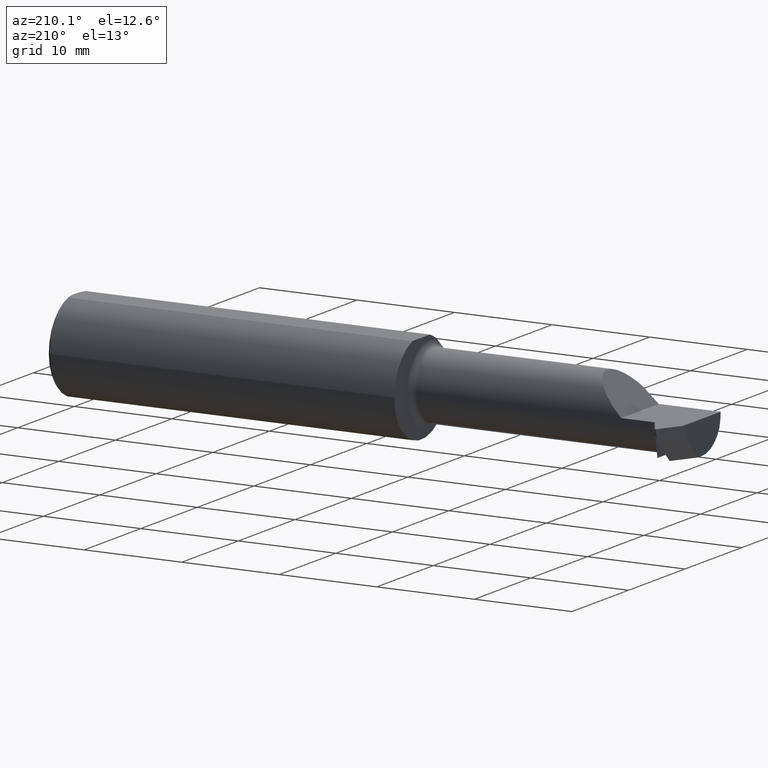
[diagram: clean part render]
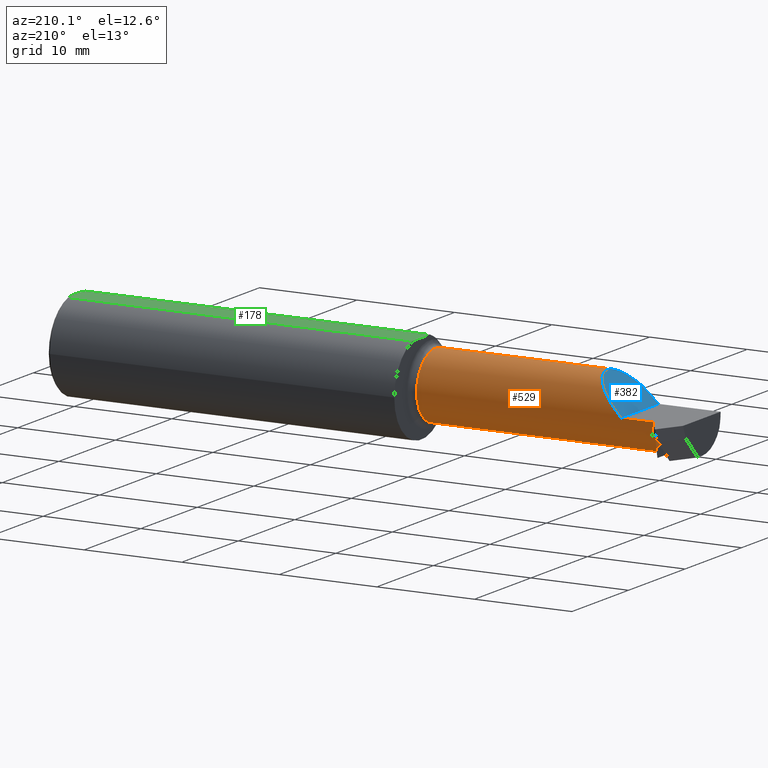
[diagram: same view with three faces highlighted in distinct colors, each labeled with its STEP entity id]
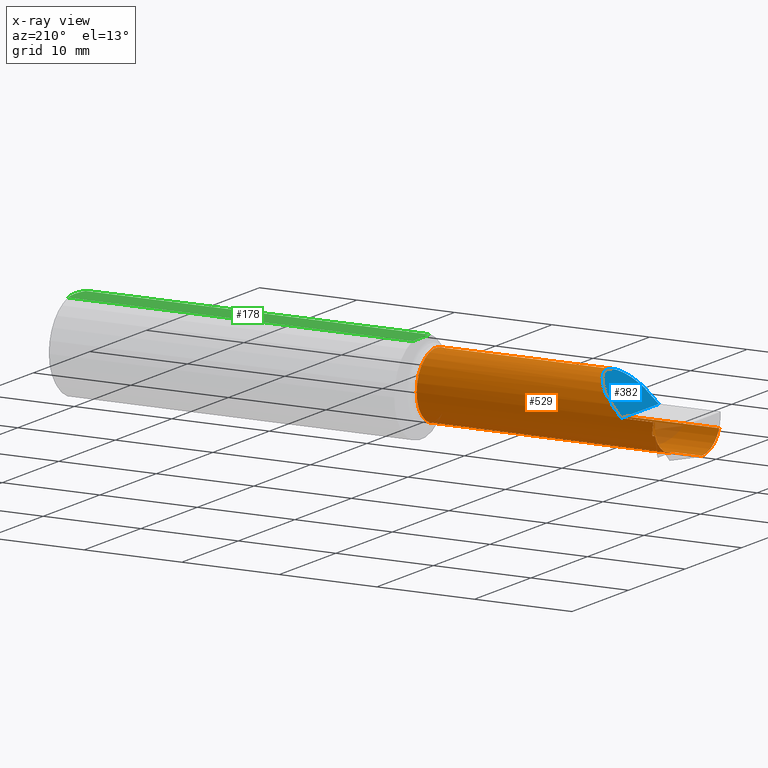
[diagram: x-ray of the same camera — body ghosted, the three highlighted faces saturated]
A machine part, auxiliary view with three faces highlighted in distinct colors.
The next image is the same camera in x-ray (body ghosted, the three faces saturated) — at least one of them is partly hidden behind the body in this view.
Their STEP definitions:

[orange] entity #529 — the highlighted cylindrical surface (partial cylindrical patch) has radius 3.3782 mm, axis along (-1, 0, -0).
#9 = AXIS2_PLACEMENT_3D ( 'NONE', #206, #792, #816 ) ;
#27 =( BOUNDED_CURVE ( )  B_SPLINE_CURVE ( 3, ( #171, #126, #443, #251 ),
 .UNSPECIFIED., .F., .F. ) 
 B_SPLINE_CURVE_WITH_KNOTS ( ( 4, 4 ),
 ( 1.570796326794896780, 1.972222054753628662 ),
 .UNSPECIFIED. ) 
 CURVE ( )  GEOMETRIC_REPRESENTATION_ITEM ( )  RATIONAL_B_SPLINE_CURVE ( ( 1.000000000000000000, 0.9866164697472173950, 0.9866164697472173950, 1.000000000000000000 ) ) 
 REPRESENTATION_ITEM ( '' )  );
#28 = CIRCLE ( 'NONE', #667, 0.1330000000000000349 ) ;
#45 = DIRECTION ( 'NONE',  ( -1.000000000000000000, -1.553500558300393421E-17, -0.000000000000000000 ) ) ;
#51 = DIRECTION ( 'NONE',  ( 0.000000000000000000, -1.000000000000000000, 0.000000000000000000 ) ) ;
#63 = EDGE_CURVE ( 'NONE', #210, #624, #151, .T. ) ;
#66 = EDGE_LOOP ( 'NONE', ( #833, #847, #753, #213, #681, #182, #587, #492, #320, #252 ) ) ;
#117 = EDGE_CURVE ( 'NONE', #210, #507, #27, .T. ) ;
#119 = CYLINDRICAL_SURFACE ( 'NONE', #691, 0.1330000000000002292 ) ;
#123 = CARTESIAN_POINT ( 'NONE',  ( -2.192691453216395914, -0.1783697086546688626, 0.05730854678360348953 ) ) ;
#126 = CARTESIAN_POINT ( 'NONE',  ( -2.377429102214748902, 0.07465000000000020230, -0.01791708402103020514 ) ) ;
#128 = DIRECTION ( 'NONE',  ( 1.000000000000000000, -9.108622265535208572E-17, 0.000000000000000000 ) ) ;
#145 = CARTESIAN_POINT ( 'NONE',  ( -2.500000000000000000, -0.05835000000000015175, -0.1330000000000000349 ) ) ;
#151 = LINE ( 'NONE', #294, #273 ) ;
#163 = DIRECTION ( 'NONE',  ( 1.000000000000000000, -9.108622265535208572E-17, 0.000000000000000000 ) ) ;
#171 = CARTESIAN_POINT ( 'NONE',  ( -2.381074374157795326, 0.07464999999999998026, 0.000000000000000000 ) ) ;
#182 = ORIENTED_EDGE ( 'NONE', *, *, #629, .F. ) ;
#206 = CARTESIAN_POINT ( 'NONE',  ( -2.500000000000000000, -0.05835000000000006154, 0.000000000000000000 ) ) ;
#210 = VERTEX_POINT ( 'NONE', #461 ) ;
#213 = ORIENTED_EDGE ( 'NONE', *, *, #329, .F. ) ;
#220 = VECTOR ( 'NONE', #351, 39.37007874015748143 ) ;
#229 = VERTEX_POINT ( 'NONE', #602 ) ;
#236 = CARTESIAN_POINT ( 'NONE',  ( -2.381074374157795326, -0.05835000000000015175, -0.1330000000000000349 ) ) ;
#251 = CARTESIAN_POINT ( 'NONE',  ( -2.370501519666968981, 0.06407714550917323337, -0.05196724008907808307 ) ) ;
#252 = ORIENTED_EDGE ( 'NONE', *, *, #296, .F. ) ;
#269 = LINE ( 'NONE', #538, #761 ) ;
#273 = VECTOR ( 'NONE', #163, 39.37007874015748143 ) ;
#278 = CARTESIAN_POINT ( 'NONE',  ( -2.381074374157795326, -0.05835000000000015175, -0.1330000000000000349 ) ) ;
#281 = VERTEX_POINT ( 'NONE', #475 ) ;
#294 = CARTESIAN_POINT ( 'NONE',  ( -2.500000000000000000, 0.07465000000000018843, 0.000000000000000000 ) ) ;
#296 = EDGE_CURVE ( 'NONE', #507, #229, #594, .T. ) ;
#304 = DIRECTION ( 'NONE',  ( 0.000000000000000000, -1.000000000000000000, 0.000000000000000000 ) ) ;
#309 = VERTEX_POINT ( 'NONE', #145 ) ;
#320 = ORIENTED_EDGE ( 'NONE', *, *, #742, .F. ) ;
#329 = EDGE_CURVE ( 'NONE', #281, #638, #419, .T. ) ;
#334 = DIRECTION ( 'NONE',  ( 0.000000000000000000, -1.000000000000000000, 0.000000000000000000 ) ) ;
#351 = DIRECTION ( 'NONE',  ( -1.000000000000000000, 9.108622265535208572E-17, -0.000000000000000000 ) ) ;
#359 = VERTEX_POINT ( 'NONE', #831 ) ;
#367 = VERTEX_POINT ( 'NONE', #278 ) ;
#375 = CARTESIAN_POINT ( 'NONE',  ( -2.381074374157795326, -0.05835000000000004766, 0.000000000000000000 ) ) ;
#379 = VECTOR ( 'NONE', #734, 39.37007874015748143 ) ;
#385 = FACE_OUTER_BOUND ( 'NONE', #66, .T. ) ;
#394 = CIRCLE ( 'NONE', #9, 0.1330000000000000071 ) ;
#396 = CARTESIAN_POINT ( 'NONE',  ( -2.030319072763994814, -0.1008380660117469685, 0.2196809272360030763 ) ) ;
#410 = EDGE_CURVE ( 'NONE', #367, #309, #632, .T. ) ;
#419 = LINE ( 'NONE', #675, #220 ) ;
#433 = AXIS2_PLACEMENT_3D ( 'NONE', #809, #655, #334 ) ;
#443 = CARTESIAN_POINT ( 'NONE',  ( -2.373857010182697014, 0.07107790796794771770, -0.03547447728800473543 ) ) ;
#451 = DIRECTION ( 'NONE',  ( -1.000000000000000000, 9.108622265535208572E-17, -0.000000000000000000 ) ) ;
#460 = CARTESIAN_POINT ( 'NONE',  ( -2.250000000000000000, 0.07465000000000018843, 0.000000000000000000 ) ) ;
#461 = CARTESIAN_POINT ( 'NONE',  ( -2.381074374157795326, 0.07464999999999998026, 0.000000000000000000 ) ) ;
#475 = CARTESIAN_POINT ( 'NONE',  ( -1.424999999999999600, -0.1783697086546689181, 0.05730854678360410015 ) ) ;
#492 = ORIENTED_EDGE ( 'NONE', *, *, #410, .F. ) ;
#507 = VERTEX_POINT ( 'NONE', #766 ) ;
#529 = ADVANCED_FACE ( 'NONE', ( #385 ), #119, .T. ) ;
#538 = CARTESIAN_POINT ( 'NONE',  ( -1.903037187078897574, -0.1783697086546686961, -0.05730854678360398913 ) ) ;
#558 = EDGE_CURVE ( 'NONE', #624, #638, #741, .T. ) ;
#587 = ORIENTED_EDGE ( 'NONE', *, *, #872, .T. ) ;
#592 = CARTESIAN_POINT ( 'NONE',  ( -2.250000000000000000, 0.07465000000000018843, 0.000000000000000000 ) ) ;
#594 = LINE ( 'NONE', #869, #379 ) ;
#602 = CARTESIAN_POINT ( 'NONE',  ( -2.381074374157795326, 0.06407714550917456564, -0.05196724008907338543 ) ) ;
#623 = VECTOR ( 'NONE', #45, 39.37007874015748143 ) ;
#624 = VERTEX_POINT ( 'NONE', #592 ) ;
#629 = EDGE_CURVE ( 'NONE', #359, #825, #269, .T. ) ;
#632 = LINE ( 'NONE', #236, #623 ) ;
#638 = VERTEX_POINT ( 'NONE', #123 ) ;
#645 = DIRECTION ( 'NONE',  ( -1.000000000000000000, 9.108622265535208572E-17, -0.000000000000000000 ) ) ;
#655 = DIRECTION ( 'NONE',  ( -1.000000000000000000, 9.108622265535208572E-17, -0.000000000000000000 ) ) ;
#667 = AXIS2_PLACEMENT_3D ( 'NONE', #375, #451, #304 ) ;
#675 = CARTESIAN_POINT ( 'NONE',  ( -1.903037187078897574, -0.1783697086546686961, 0.05730854678360398913 ) ) ;
#681 = ORIENTED_EDGE ( 'NONE', *, *, #866, .T. ) ;
#689 = CIRCLE ( 'NONE', #433, 0.1330000000000004234 ) ;
#691 = AXIS2_PLACEMENT_3D ( 'NONE', #782, #645, #51 ) ;
#730 = CARTESIAN_POINT ( 'NONE',  ( -1.424999999999999600, -0.1783697086546688904, -0.05730854678360418342 ) ) ;
#732 = CARTESIAN_POINT ( 'NONE',  ( -2.070066830337791153, 0.07465000000000010516, 0.1799331696622070154 ) ) ;
#734 = DIRECTION ( 'NONE',  ( -1.000000000000000000, 9.108622265535208572E-17, -0.000000000000000000 ) ) ;
#741 =( BOUNDED_CURVE ( )  B_SPLINE_CURVE ( 3, ( #460, #732, #396, #801 ),
 .UNSPECIFIED., .F., .F. ) 
 B_SPLINE_CURVE_WITH_KNOTS ( ( 4, 4 ),
 ( 1.570796326794896558, 4.266908708460871225 ),
 .UNSPECIFIED. ) 
 CURVE ( )  GEOMETRIC_REPRESENTATION_ITEM ( )  RATIONAL_B_SPLINE_CURVE ( ( 1.000000000000000000, 0.4806019281062908211, 0.4806019281062908211, 1.000000000000000000 ) ) 
 REPRESENTATION_ITEM ( '' )  );
#742 = EDGE_CURVE ( 'NONE', #229, #367, #28, .T. ) ;
#753 = ORIENTED_EDGE ( 'NONE', *, *, #558, .T. ) ;
#761 = VECTOR ( 'NONE', #128, 39.37007874015748143 ) ;
#766 = CARTESIAN_POINT ( 'NONE',  ( -2.370501519666968981, 0.06407714550917323337, -0.05196724008907808307 ) ) ;
#782 = CARTESIAN_POINT ( 'NONE',  ( -2.500000000000000000, -0.05835000000000004072, 0.000000000000000000 ) ) ;
#792 = DIRECTION ( 'NONE',  ( 1.000000000000000000, 1.553500558300393113E-17, -0.000000000000000000 ) ) ;
#801 = CARTESIAN_POINT ( 'NONE',  ( -2.192691453216395914, -0.1783697086546688626, 0.05730854678360348953 ) ) ;
#809 = CARTESIAN_POINT ( 'NONE',  ( -1.424999999999999600, -0.05835000000000013787, 0.000000000000000000 ) ) ;
#816 = DIRECTION ( 'NONE',  ( 0.000000000000000000, -1.000000000000000000, 0.000000000000000000 ) ) ;
#825 = VERTEX_POINT ( 'NONE', #730 ) ;
#831 = CARTESIAN_POINT ( 'NONE',  ( -2.500000000000000000, -0.1783697086546693900, -0.05730854678360196297 ) ) ;
#833 = ORIENTED_EDGE ( 'NONE', *, *, #117, .F. ) ;
#847 = ORIENTED_EDGE ( 'NONE', *, *, #63, .T. ) ;
#866 = EDGE_CURVE ( 'NONE', #281, #825, #689, .T. ) ;
#869 = CARTESIAN_POINT ( 'NONE',  ( -2.500000000000001332, 0.06407714550917283092, -0.05196724008907797898 ) ) ;
#872 = EDGE_CURVE ( 'NONE', #359, #309, #394, .T. ) ;

[blue] entity #382 — the highlighted planar face has unit normal (0.7071, 0, -0.7071).
#32 = FACE_OUTER_BOUND ( 'NONE', #701, .T. ) ;
#64 = EDGE_CURVE ( 'NONE', #133, #624, #223, .T. ) ;
#121 = CARTESIAN_POINT ( 'NONE',  ( -2.250000000000000000, -0.1873499999999998222, 0.000000000000000000 ) ) ;
#123 = CARTESIAN_POINT ( 'NONE',  ( -2.192691453216395914, -0.1783697086546688626, 0.05730854678360348953 ) ) ;
#133 = VERTEX_POINT ( 'NONE', #121 ) ;
#153 = DIRECTION ( 'NONE',  ( -0.7071067811865514585, 0.000000000000000000, -0.7071067811865435759 ) ) ;
#223 = LINE ( 'NONE', #616, #760 ) ;
#230 = CARTESIAN_POINT ( 'NONE',  ( -2.192691453216395914, -0.1783697086546688626, 0.05730854678360348953 ) ) ;
#282 = PLANE ( 'NONE',  #738 ) ;
#332 = ORIENTED_EDGE ( 'NONE', *, *, #558, .F. ) ;
#382 = ADVANCED_FACE ( 'NONE', ( #32 ), #282, .F. ) ;
#389 = ORIENTED_EDGE ( 'NONE', *, *, #64, .F. ) ;
#396 = CARTESIAN_POINT ( 'NONE',  ( -2.030319072763994814, -0.1008380660117469685, 0.2196809272360030763 ) ) ;
#459 = ORIENTED_EDGE ( 'NONE', *, *, #534, .T. ) ;
#460 = CARTESIAN_POINT ( 'NONE',  ( -2.250000000000000000, 0.07465000000000018843, 0.000000000000000000 ) ) ;
#534 = EDGE_CURVE ( 'NONE', #133, #638, #650, .T. ) ;
#550 = DIRECTION ( 'NONE',  ( 0.7071067811865435759, 0.000000000000000000, -0.7071067811865514585 ) ) ;
#558 = EDGE_CURVE ( 'NONE', #624, #638, #741, .T. ) ;
#592 = CARTESIAN_POINT ( 'NONE',  ( -2.250000000000000000, 0.07465000000000018843, 0.000000000000000000 ) ) ;
#611 = CARTESIAN_POINT ( 'NONE',  ( -2.250000000000000000, -0.2500000000000000000, 0.000000000000000000 ) ) ;
#616 = CARTESIAN_POINT ( 'NONE',  ( -2.250000000000000000, -0.2500000000000000000, 0.000000000000000000 ) ) ;
#624 = VERTEX_POINT ( 'NONE', #592 ) ;
#628 = CARTESIAN_POINT ( 'NONE',  ( -2.230507368514858868, -0.1873499999999997390, 0.01949263148514107299 ) ) ;
#638 = VERTEX_POINT ( 'NONE', #123 ) ;
#650 =( BOUNDED_CURVE ( )  B_SPLINE_CURVE ( 3, ( #853, #628, #835, #230 ),
 .UNSPECIFIED., .F., .F. ) 
 B_SPLINE_CURVE_WITH_KNOTS ( ( 4, 4 ),
 ( 4.712388980384689674, 5.023262387692872366 ),
 .UNSPECIFIED. ) 
 CURVE ( )  GEOMETRIC_REPRESENTATION_ITEM ( )  RATIONAL_B_SPLINE_CURVE ( ( 1.000000000000000000, 0.9919626788073500068, 0.9919626788073500068, 1.000000000000000000 ) ) 
 REPRESENTATION_ITEM ( '' )  );
#701 = EDGE_LOOP ( 'NONE', ( #332, #389, #459 ) ) ;
#732 = CARTESIAN_POINT ( 'NONE',  ( -2.070066830337791153, 0.07465000000000010516, 0.1799331696622070154 ) ) ;
#738 = AXIS2_PLACEMENT_3D ( 'NONE', #611, #550, #153 ) ;
#741 =( BOUNDED_CURVE ( )  B_SPLINE_CURVE ( 3, ( #460, #732, #396, #801 ),
 .UNSPECIFIED., .F., .F. ) 
 B_SPLINE_CURVE_WITH_KNOTS ( ( 4, 4 ),
 ( 1.570796326794896558, 4.266908708460871225 ),
 .UNSPECIFIED. ) 
 CURVE ( )  GEOMETRIC_REPRESENTATION_ITEM ( )  RATIONAL_B_SPLINE_CURVE ( ( 1.000000000000000000, 0.4806019281062908211, 0.4806019281062908211, 1.000000000000000000 ) ) 
 REPRESENTATION_ITEM ( '' )  );
#757 = DIRECTION ( 'NONE',  ( -0.000000000000000000, 1.000000000000000000, -0.000000000000000000 ) ) ;
#760 = VECTOR ( 'NONE', #757, 39.37007874015748143 ) ;
#801 = CARTESIAN_POINT ( 'NONE',  ( -2.192691453216395914, -0.1783697086546688626, 0.05730854678360348953 ) ) ;
#835 = CARTESIAN_POINT ( 'NONE',  ( -2.211249739839921347, -0.1843323154515824347, 0.03875026016007811214 ) ) ;
#853 = CARTESIAN_POINT ( 'NONE',  ( -2.250000000000000000, -0.1873499999999998222, 0.000000000000000000 ) ) ;

[green] entity #178 — the highlighted planar face has unit normal (-0, 0, -1).
#25 = CARTESIAN_POINT ( 'NONE',  ( 5.171903141325568845E-16, -0.01026980879711894036, 0.1773500000000000909 ) ) ;
#34 = CARTESIAN_POINT ( 'NONE',  ( -0.004318418993202907154, -0.04060972747957771606, 0.1773500000000000909 ) ) ;
#50 = VERTEX_POINT ( 'NONE', #483 ) ;
#58 = VECTOR ( 'NONE', #67, 39.37007874015748143 ) ;
#67 = DIRECTION ( 'NONE',  ( -1.000000000000000000, -1.224646799147352961E-16, 0.000000000000000000 ) ) ;
#74 = DIRECTION ( 'NONE',  ( 9.108622265535208572E-17, 1.000000000000000000, 1.608104540654733016E-16 ) ) ;
#83 = EDGE_CURVE ( 'NONE', #765, #268, #293, .T. ) ;
#96 = ORIENTED_EDGE ( 'NONE', *, *, #548, .T. ) ;
#101 = CARTESIAN_POINT ( 'NONE',  ( -0.009999999999999073866, 0.06039039658753679596, 0.1773500000000000909 ) ) ;
#103 = CARTESIAN_POINT ( 'NONE',  ( -2.500000000000000000, 0.06039039658753648371, 0.1773500000000000909 ) ) ;
#111 = DIRECTION ( 'NONE',  ( 0.000000000000000000, 1.000000000000000000, 1.608104540654733016E-16 ) ) ;
#116 = DIRECTION ( 'NONE',  ( -2.498191301712524670E-33, 1.608104540654733016E-16, -1.000000000000000000 ) ) ;
#144 = LINE ( 'NONE', #330, #290 ) ;
#161 = CARTESIAN_POINT ( 'NONE',  ( -0.006863038267947816837, -0.05065855487579175309, 0.1773500000000001187 ) ) ;
#172 = ORIENTED_EDGE ( 'NONE', *, *, #553, .F. ) ;
#178 = ADVANCED_FACE ( 'NONE', ( #721 ), #331, .F. ) ;
#187 = ORIENTED_EDGE ( 'NONE', *, *, #83, .T. ) ;
#218 = CARTESIAN_POINT ( 'NONE',  ( -0.009999999999999073866, -0.06039039658753610901, 0.1773500000000000909 ) ) ;
#240 = ORIENTED_EDGE ( 'NONE', *, *, #819, .T. ) ;
#254 = B_SPLINE_CURVE_WITH_KNOTS ( 'NONE', 3,
 ( #391, #574, #651, #370, #630, #101 ),
 .UNSPECIFIED., .F., .F.,
 ( 4, 2, 4 ),
 ( 0.003500626357656855259, 0.004276870921898036533, 0.005053115486139217807 ),
 .UNSPECIFIED. ) ;
#268 = VERTEX_POINT ( 'NONE', #670 ) ;
#290 = VECTOR ( 'NONE', #606, 39.37007874015748143 ) ;
#293 = B_SPLINE_CURVE_WITH_KNOTS ( 'NONE', 3,
 ( #218, #161, #34, #555, #25, #562 ),
 .UNSPECIFIED., .F., .F.,
 ( 4, 2, 4 ),
 ( 0.001950265285394878591, 0.002725445821525866816, 0.003500626357656855259 ),
 .UNSPECIFIED. ) ;
#330 = CARTESIAN_POINT ( 'NONE',  ( -2.500000000000000000, -0.06039039658753642126, 0.1773500000000000909 ) ) ;
#331 = PLANE ( 'NONE',  #383 ) ;
#337 = LINE ( 'NONE', #468, #542 ) ;
#370 = CARTESIAN_POINT ( 'NONE',  ( -0.004345633232307606099, 0.04072602595449463514, 0.1773500000000000909 ) ) ;
#373 = CARTESIAN_POINT ( 'NONE',  ( -1.399999999999999911, -0.06039039658753628248, 0.1773500000000000909 ) ) ;
#383 = AXIS2_PLACEMENT_3D ( 'NONE', #788, #116, #111 ) ;
#391 = CARTESIAN_POINT ( 'NONE',  ( -4.969808731120575398E-33, 3.199103279729614531E-16, 0.1773500000000000909 ) ) ;
#437 = VERTEX_POINT ( 'NONE', #373 ) ;
#468 = CARTESIAN_POINT ( 'NONE',  ( -1.399999999999999911, 0.2123500000000000942, 0.1773500000000001187 ) ) ;
#483 = CARTESIAN_POINT ( 'NONE',  ( -1.399999999999999911, 0.06039039658753678902, 0.1773500000000000909 ) ) ;
#542 = VECTOR ( 'NONE', #74, 39.37007874015748143 ) ;
#548 = EDGE_CURVE ( 'NONE', #591, #50, #698, .T. ) ;
#553 = EDGE_CURVE ( 'NONE', #437, #50, #337, .T. ) ;
#555 = CARTESIAN_POINT ( 'NONE',  ( -0.0008974174807281084338, -0.02044204845470678697, 0.1773500000000000909 ) ) ;
#562 = CARTESIAN_POINT ( 'NONE',  ( -4.969808731120575398E-33, 3.199103279729614531E-16, 0.1773500000000000909 ) ) ;
#574 = CARTESIAN_POINT ( 'NONE',  ( 5.242517010058283000E-16, 0.01028390533945651962, 0.1773500000000001187 ) ) ;
#582 = EDGE_LOOP ( 'NONE', ( #172, #240, #187, #657, #96 ) ) ;
#591 = VERTEX_POINT ( 'NONE', #597 ) ;
#597 = CARTESIAN_POINT ( 'NONE',  ( -0.009999999999999073866, 0.06039039658753679596, 0.1773500000000000909 ) ) ;
#606 = DIRECTION ( 'NONE',  ( 1.000000000000000000, 1.224646799147352961E-16, -0.000000000000000000 ) ) ;
#630 = CARTESIAN_POINT ( 'NONE',  ( -0.006852151730285416242, 0.05062478141268286075, 0.1773500000000000909 ) ) ;
#651 = CARTESIAN_POINT ( 'NONE',  ( -0.0009167640511158918265, 0.02059964124962103751, 0.1773500000000000909 ) ) ;
#657 = ORIENTED_EDGE ( 'NONE', *, *, #770, .T. ) ;
#670 = CARTESIAN_POINT ( 'NONE',  ( -4.969808731120575398E-33, 3.199103279729614531E-16, 0.1773500000000000909 ) ) ;
#698 = LINE ( 'NONE', #103, #58 ) ;
#721 = FACE_OUTER_BOUND ( 'NONE', #582, .T. ) ;
#765 = VERTEX_POINT ( 'NONE', #783 ) ;
#770 = EDGE_CURVE ( 'NONE', #268, #591, #254, .T. ) ;
#783 = CARTESIAN_POINT ( 'NONE',  ( -0.009999999999999073866, -0.06039039658753610901, 0.1773500000000000909 ) ) ;
#788 = CARTESIAN_POINT ( 'NONE',  ( -2.500000000000000000, 0.2123500000000002053, 0.1773500000000001187 ) ) ;
#819 = EDGE_CURVE ( 'NONE', #437, #765, #144, .T. ) ;